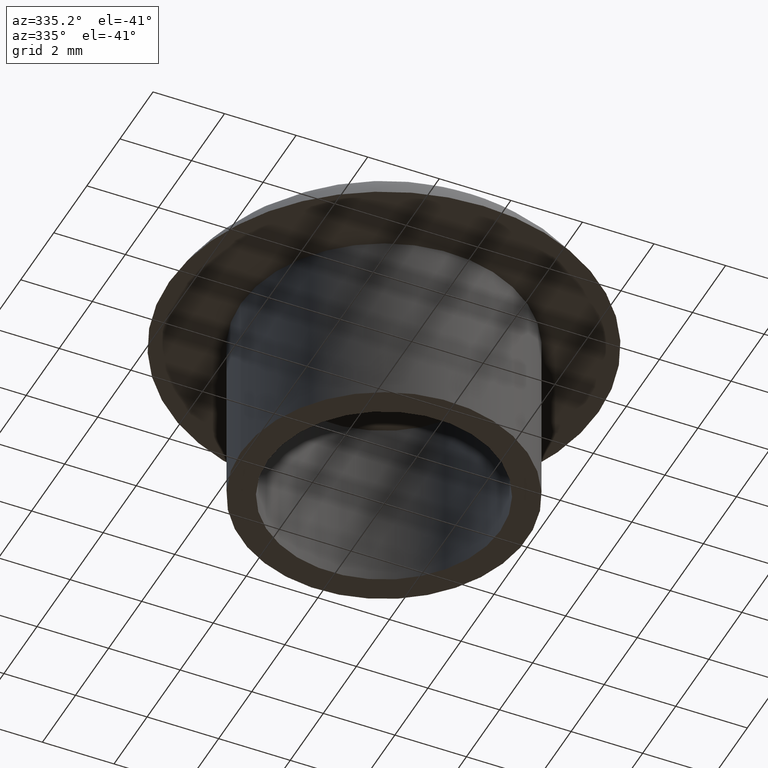
[diagram: clean part render]
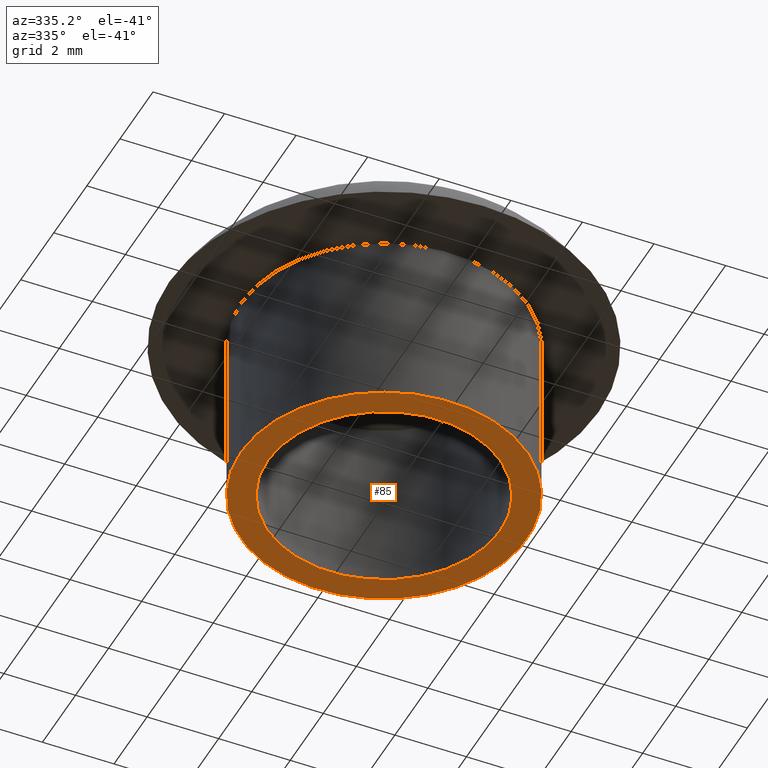
[diagram: same view with one face highlighted and labeled with its STEP entity id]
A machine part, auxiliary view. The second image highlights one B-rep face of the part: STEP entity #85.
In plain terms, the highlighted planar face has unit normal (0, 0, 1).
Its self-contained STEP definition (entity closure, byte-faithful):
#17=PLANE('',#98);
#23=FACE_BOUND('',#37,.T.);
#27=FACE_OUTER_BOUND('',#36,.T.);
#36=EDGE_LOOP('',(#69));
#37=EDGE_LOOP('',(#70));
#43=CIRCLE('',#93,3.25);
#45=CIRCLE('',#96,4.);
#50=VERTEX_POINT('',#135);
#52=VERTEX_POINT('',#140);
#57=EDGE_CURVE('',#50,#50,#43,.T.);
#59=EDGE_CURVE('',#52,#52,#45,.T.);
#69=ORIENTED_EDGE('',*,*,#59,.T.);
#70=ORIENTED_EDGE('',*,*,#57,.T.);
#85=ADVANCED_FACE('',(#27,#23),#17,.F.);
#93=AXIS2_PLACEMENT_3D('',#136,#109,#110);
#96=AXIS2_PLACEMENT_3D('',#141,#115,#116);
#98=AXIS2_PLACEMENT_3D('',#144,#119,#120);
#109=DIRECTION('center_axis',(0.,0.,1.));
#110=DIRECTION('ref_axis',(1.,0.,0.));
#115=DIRECTION('center_axis',(0.,0.,-1.));
#116=DIRECTION('ref_axis',(1.,0.,0.));
#119=DIRECTION('center_axis',(0.,0.,1.));
#120=DIRECTION('ref_axis',(1.,0.,0.));
#135=CARTESIAN_POINT('',(-3.25,3.9801020972289E-16,-5.));
#136=CARTESIAN_POINT('Origin',(0.,0.,-5.));
#140=CARTESIAN_POINT('',(-4.,4.89858719658941E-16,-5.));
#141=CARTESIAN_POINT('Origin',(0.,0.,-5.));
#144=CARTESIAN_POINT('Origin',(2.72118023435153E-16,0.,-5.));